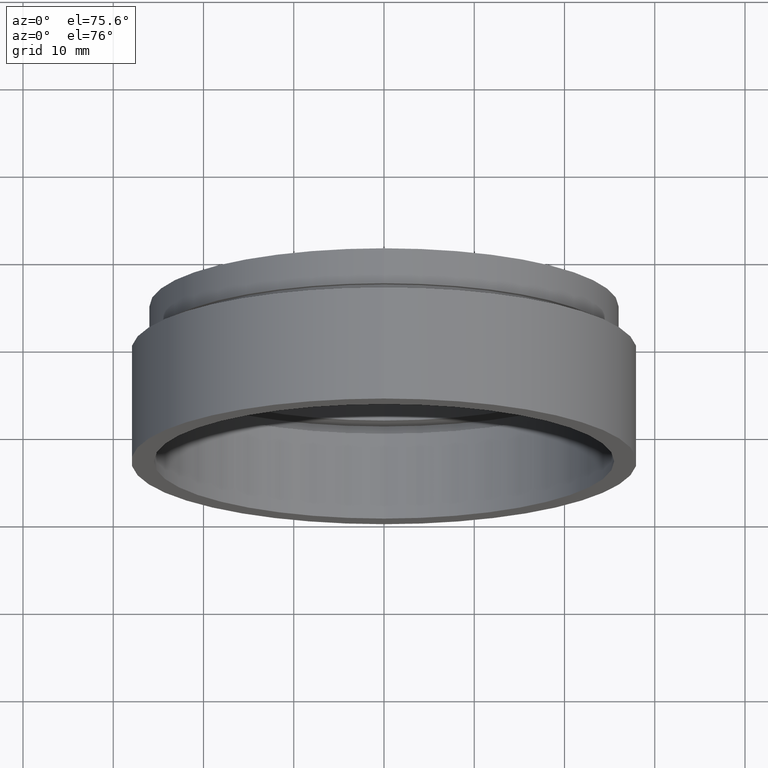
[diagram: clean part render]
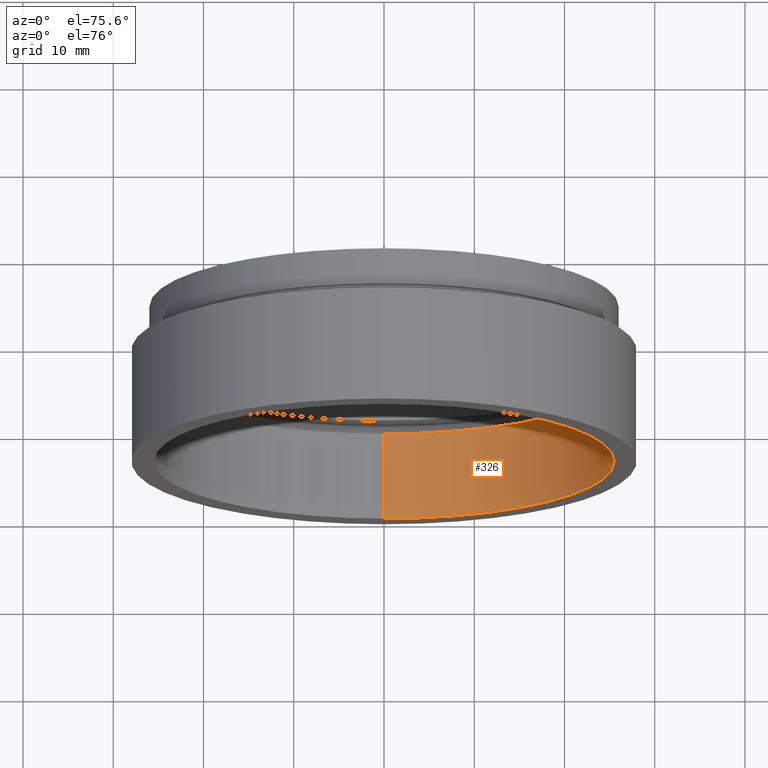
[diagram: same view with one face highlighted and labeled with its STEP entity id]
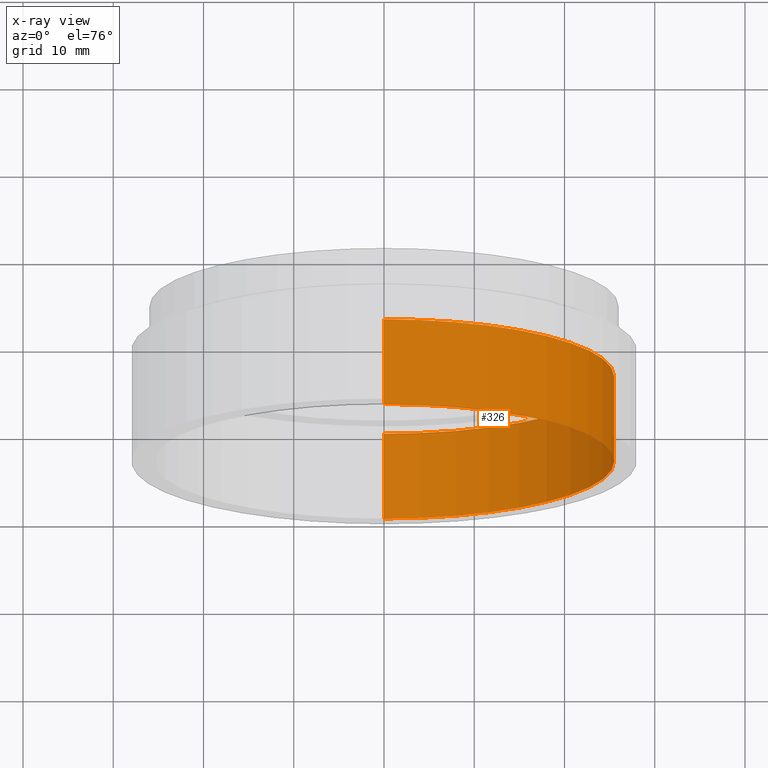
[diagram: x-ray of the same camera — body ghosted, the highlighted face saturated]
A machine part, auxiliary view. The second image highlights one B-rep face of the part: STEP entity #326.
The next image is the same camera in x-ray: the body ghosted, the highlighted face saturated — about 0% of this face is hidden behind the body in this view.
In plain terms, the highlighted cylindrical surface (partial cylindrical patch) has radius 25.5 mm, axis along (-0, 1, -0).
Its self-contained STEP definition (entity closure, byte-faithful):
#26 = VECTOR ( 'NONE', #475, 1000.000000000000000 ) ;
#38 = CARTESIAN_POINT ( 'NONE',  ( 3.122849337825753000E-015, 9.699999999999986900, -25.50000000000001800 ) ) ;
#71 = CARTESIAN_POINT ( 'NONE',  ( 3.122849337825753000E-015, -2.775557561562891400E-014, -25.50000000000001800 ) ) ;
#83 = CARTESIAN_POINT ( 'NONE',  ( 0.0000000000000000000, 161.3761669434274500, 0.0000000000000000000 ) ) ;
#84 = VECTOR ( 'NONE', #286, 1000.000000000000000 ) ;
#85 = CARTESIAN_POINT ( 'NONE',  ( 0.0000000000000000000, 9.699999999999986900, 25.50000000000001800 ) ) ;
#109 = ORIENTED_EDGE ( 'NONE', *, *, #352, .F. ) ;
#128 = VERTEX_POINT ( 'NONE', #71 ) ;
#130 = EDGE_CURVE ( 'NONE', #420, #251, #546, .T. ) ;
#143 = CARTESIAN_POINT ( 'NONE',  ( 3.122849337825753000E-015, 161.3761669434274500, -25.50000000000001800 ) ) ;
#145 = DIRECTION ( 'NONE',  ( 0.0000000000000000000, 0.0000000000000000000, 1.000000000000000000 ) ) ;
#150 = CARTESIAN_POINT ( 'NONE',  ( 0.0000000000000000000, -2.775557561562891400E-014, 0.0000000000000000000 ) ) ;
#154 = LINE ( 'NONE', #283, #26 ) ;
#162 = CIRCLE ( 'NONE', #396, 25.50000000000001800 ) ;
#164 = CARTESIAN_POINT ( 'NONE',  ( 0.0000000000000000000, 9.699999999999986900, 0.0000000000000000000 ) ) ;
#216 = ORIENTED_EDGE ( 'NONE', *, *, #130, .T. ) ;
#251 = VERTEX_POINT ( 'NONE', #38 ) ;
#269 = ORIENTED_EDGE ( 'NONE', *, *, #594, .F. ) ;
#270 = CYLINDRICAL_SURFACE ( 'NONE', #517, 25.50000000000001800 ) ;
#275 = CARTESIAN_POINT ( 'NONE',  ( 0.0000000000000000000, -2.775557561562891400E-014, 25.50000000000001800 ) ) ;
#283 = CARTESIAN_POINT ( 'NONE',  ( 0.0000000000000000000, 161.3761669434274500, 25.50000000000001800 ) ) ;
#286 = DIRECTION ( 'NONE',  ( -0.0000000000000000000, 1.000000000000000000, -0.0000000000000000000 ) ) ;
#307 = EDGE_LOOP ( 'NONE', ( #109, #269, #508, #216 ) ) ;
#319 = LINE ( 'NONE', #143, #84 ) ;
#326 = ADVANCED_FACE ( 'NONE', ( #430 ), #270, .F. ) ;
#329 = DIRECTION ( 'NONE',  ( 0.0000000000000000000, 0.0000000000000000000, 1.000000000000000000 ) ) ;
#344 = AXIS2_PLACEMENT_3D ( 'NONE', #164, #366, #503 ) ;
#348 = DIRECTION ( 'NONE',  ( -0.0000000000000000000, 1.000000000000000000, -0.0000000000000000000 ) ) ;
#352 = EDGE_CURVE ( 'NONE', #128, #251, #319, .T. ) ;
#366 = DIRECTION ( 'NONE',  ( -0.0000000000000000000, 1.000000000000000000, -0.0000000000000000000 ) ) ;
#387 = EDGE_CURVE ( 'NONE', #531, #420, #154, .T. ) ;
#396 = AXIS2_PLACEMENT_3D ( 'NONE', #150, #348, #145 ) ;
#420 = VERTEX_POINT ( 'NONE', #85 ) ;
#430 = FACE_OUTER_BOUND ( 'NONE', #307, .T. ) ;
#467 = DIRECTION ( 'NONE',  ( -0.0000000000000000000, 1.000000000000000000, -0.0000000000000000000 ) ) ;
#475 = DIRECTION ( 'NONE',  ( -0.0000000000000000000, 1.000000000000000000, -0.0000000000000000000 ) ) ;
#503 = DIRECTION ( 'NONE',  ( 0.0000000000000000000, 0.0000000000000000000, 1.000000000000000000 ) ) ;
#508 = ORIENTED_EDGE ( 'NONE', *, *, #387, .T. ) ;
#517 = AXIS2_PLACEMENT_3D ( 'NONE', #83, #467, #329 ) ;
#531 = VERTEX_POINT ( 'NONE', #275 ) ;
#546 = CIRCLE ( 'NONE', #344, 25.50000000000001800 ) ;
#594 = EDGE_CURVE ( 'NONE', #531, #128, #162, .T. ) ;